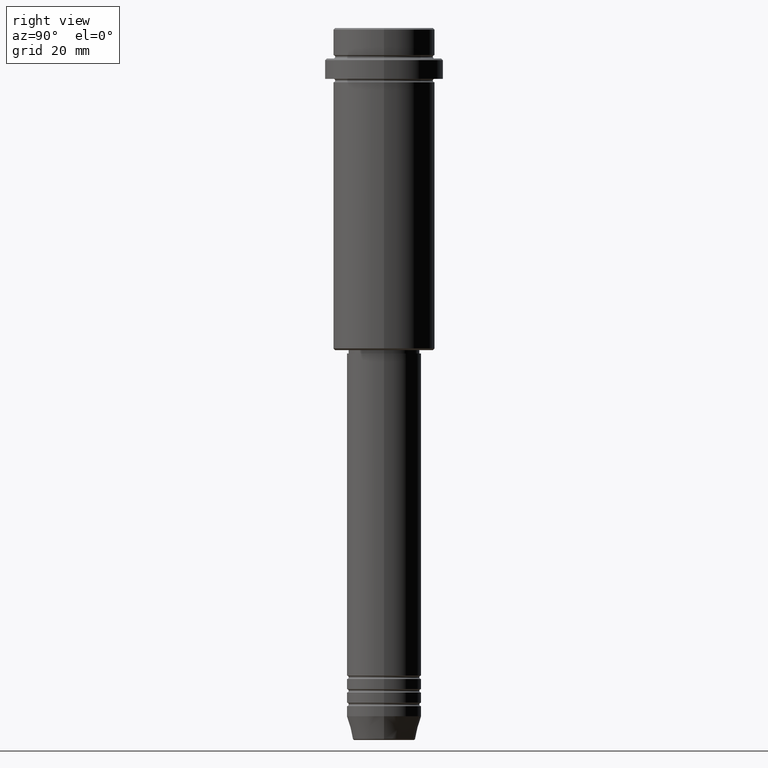
[diagram: clean part render]
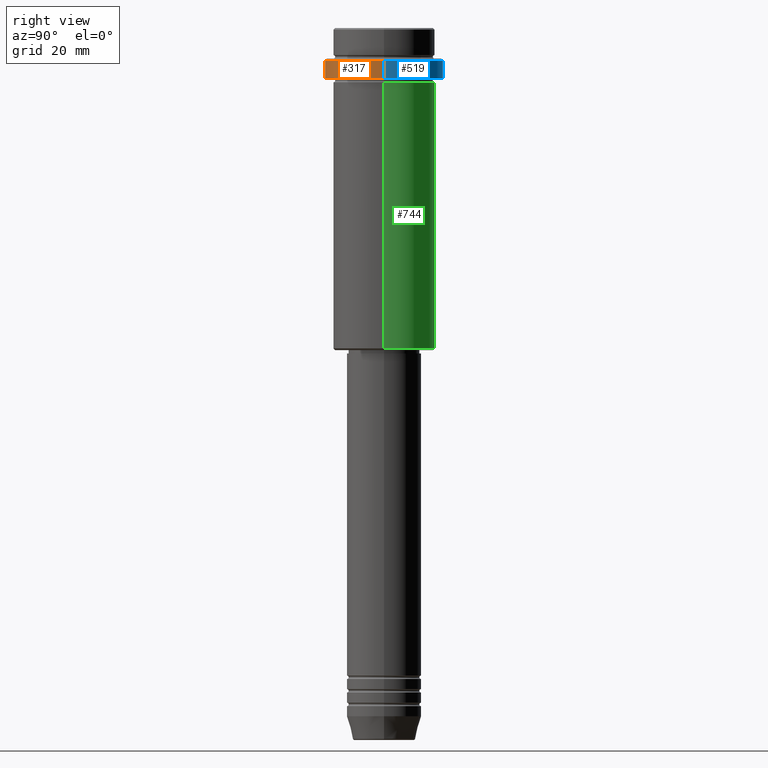
[diagram: same view with three faces highlighted in distinct colors, each labeled with its STEP entity id]
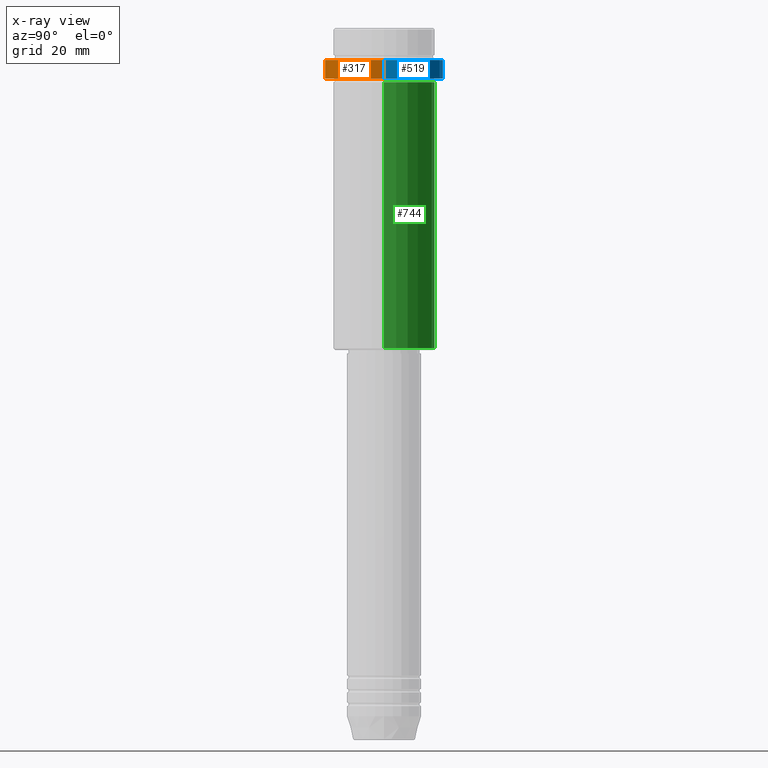
[diagram: x-ray of the same camera — body ghosted, the three highlighted faces saturated]
A machine part, right view with three faces highlighted in distinct colors.
The next image is the same camera in x-ray (body ghosted, the three faces saturated) — at least one of them is partly hidden behind the body in this view.
Their STEP definitions:

[orange] entity #317 — the highlighted cylindrical surface (partial cylindrical patch) has radius 17.5 mm, axis along (-0, -0, 1).
#38 = CARTESIAN_POINT ( 'NONE',  ( 17.50000000000000000, 0.000000000000000000, 0.000000000000000000 ) ) ;
#125 = EDGE_CURVE ( 'NONE', #884, #1259, #1309, .T. ) ;
#137 = AXIS2_PLACEMENT_3D ( 'NONE', #1012, #468, #272 ) ;
#221 = LINE ( 'NONE', #976, #544 ) ;
#226 = CYLINDRICAL_SURFACE ( 'NONE', #651, 17.50000000000000000 ) ;
#272 = DIRECTION ( 'NONE',  ( 1.000000000000000000, 0.000000000000000000, 0.000000000000000000 ) ) ;
#304 = DIRECTION ( 'NONE',  ( -0.000000000000000000, -0.000000000000000000, 1.000000000000000000 ) ) ;
#317 = ADVANCED_FACE ( 'NONE', ( #906 ), #226, .T. ) ;
#368 = CARTESIAN_POINT ( 'NONE',  ( 0.000000000000000000, 0.000000000000000000, 0.000000000000000000 ) ) ;
#389 = EDGE_CURVE ( 'NONE', #1259, #475, #1227, .T. ) ;
#442 = AXIS2_PLACEMENT_3D ( 'NONE', #1244, #304, #523 ) ;
#468 = DIRECTION ( 'NONE',  ( 0.000000000000000000, 0.000000000000000000, -1.000000000000000000 ) ) ;
#475 = VERTEX_POINT ( 'NONE', #1255 ) ;
#523 = DIRECTION ( 'NONE',  ( 1.000000000000000000, 0.000000000000000000, 0.000000000000000000 ) ) ;
#544 = VECTOR ( 'NONE', #1404, 1000.000000000000000 ) ;
#554 = DIRECTION ( 'NONE',  ( -0.000000000000000000, -0.000000000000000000, 1.000000000000000000 ) ) ;
#613 = CARTESIAN_POINT ( 'NONE',  ( -17.50000000000000000, 2.143131898507868248E-15, -9.500000000000028422 ) ) ;
#651 = AXIS2_PLACEMENT_3D ( 'NONE', #368, #554, #993 ) ;
#813 = ORIENTED_EDGE ( 'NONE', *, *, #389, .T. ) ;
#821 = CARTESIAN_POINT ( 'NONE',  ( -17.50000000000000000, 2.143131898507868248E-15, -15.00000000000000178 ) ) ;
#884 = VERTEX_POINT ( 'NONE', #821 ) ;
#895 = VECTOR ( 'NONE', #926, 1000.000000000000000 ) ;
#906 = FACE_OUTER_BOUND ( 'NONE', #937, .T. ) ;
#920 = ORIENTED_EDGE ( 'NONE', *, *, #1254, .F. ) ;
#926 = DIRECTION ( 'NONE',  ( -0.000000000000000000, -0.000000000000000000, 1.000000000000000000 ) ) ;
#937 = EDGE_LOOP ( 'NONE', ( #920, #1363, #813, #965 ) ) ;
#965 = ORIENTED_EDGE ( 'NONE', *, *, #1145, .T. ) ;
#968 = CARTESIAN_POINT ( 'NONE',  ( 17.50000000000000000, 0.000000000000000000, -15.00000000000000178 ) ) ;
#976 = CARTESIAN_POINT ( 'NONE',  ( -17.50000000000000000, 2.143131898507868248E-15, 0.000000000000000000 ) ) ;
#993 = DIRECTION ( 'NONE',  ( 1.000000000000000000, 0.000000000000000000, 0.000000000000000000 ) ) ;
#1012 = CARTESIAN_POINT ( 'NONE',  ( 0.000000000000000000, 0.000000000000000000, -9.500000000000028422 ) ) ;
#1039 = VERTEX_POINT ( 'NONE', #613 ) ;
#1106 = CIRCLE ( 'NONE', #137, 17.50000000000000000 ) ;
#1145 = EDGE_CURVE ( 'NONE', #475, #1039, #1106, .T. ) ;
#1227 = LINE ( 'NONE', #38, #895 ) ;
#1244 = CARTESIAN_POINT ( 'NONE',  ( 0.000000000000000000, 0.000000000000000000, -15.00000000000000178 ) ) ;
#1254 = EDGE_CURVE ( 'NONE', #884, #1039, #221, .T. ) ;
#1255 = CARTESIAN_POINT ( 'NONE',  ( 17.50000000000000000, 0.000000000000000000, -9.500000000000028422 ) ) ;
#1259 = VERTEX_POINT ( 'NONE', #968 ) ;
#1309 = CIRCLE ( 'NONE', #442, 17.50000000000000000 ) ;
#1363 = ORIENTED_EDGE ( 'NONE', *, *, #125, .T. ) ;
#1404 = DIRECTION ( 'NONE',  ( -0.000000000000000000, -0.000000000000000000, 1.000000000000000000 ) ) ;

[blue] entity #519 — the highlighted cylindrical surface (partial cylindrical patch) has radius 17.5 mm, axis along (-0, -0, 1).
#22 = ORIENTED_EDGE ( 'NONE', *, *, #240, .T. ) ;
#38 = CARTESIAN_POINT ( 'NONE',  ( 17.50000000000000000, 0.000000000000000000, 0.000000000000000000 ) ) ;
#180 = CYLINDRICAL_SURFACE ( 'NONE', #1048, 17.50000000000000000 ) ;
#207 = CARTESIAN_POINT ( 'NONE',  ( 0.000000000000000000, 0.000000000000000000, 0.000000000000000000 ) ) ;
#218 = EDGE_LOOP ( 'NONE', ( #507, #851, #22, #726 ) ) ;
#221 = LINE ( 'NONE', #976, #544 ) ;
#240 = EDGE_CURVE ( 'NONE', #1039, #475, #258, .T. ) ;
#258 = CIRCLE ( 'NONE', #778, 17.50000000000000000 ) ;
#389 = EDGE_CURVE ( 'NONE', #1259, #475, #1227, .T. ) ;
#452 = DIRECTION ( 'NONE',  ( -0.000000000000000000, -0.000000000000000000, 1.000000000000000000 ) ) ;
#475 = VERTEX_POINT ( 'NONE', #1255 ) ;
#507 = ORIENTED_EDGE ( 'NONE', *, *, #954, .T. ) ;
#519 = ADVANCED_FACE ( 'NONE', ( #718 ), #180, .T. ) ;
#544 = VECTOR ( 'NONE', #1404, 1000.000000000000000 ) ;
#551 = CARTESIAN_POINT ( 'NONE',  ( 0.000000000000000000, 0.000000000000000000, -9.500000000000028422 ) ) ;
#563 = CIRCLE ( 'NONE', #608, 17.50000000000000000 ) ;
#608 = AXIS2_PLACEMENT_3D ( 'NONE', #973, #1181, #1281 ) ;
#613 = CARTESIAN_POINT ( 'NONE',  ( -17.50000000000000000, 2.143131898507868248E-15, -9.500000000000028422 ) ) ;
#718 = FACE_OUTER_BOUND ( 'NONE', #218, .T. ) ;
#726 = ORIENTED_EDGE ( 'NONE', *, *, #389, .F. ) ;
#778 = AXIS2_PLACEMENT_3D ( 'NONE', #551, #1172, #1075 ) ;
#821 = CARTESIAN_POINT ( 'NONE',  ( -17.50000000000000000, 2.143131898507868248E-15, -15.00000000000000178 ) ) ;
#851 = ORIENTED_EDGE ( 'NONE', *, *, #1254, .T. ) ;
#879 = DIRECTION ( 'NONE',  ( 1.000000000000000000, 0.000000000000000000, 0.000000000000000000 ) ) ;
#884 = VERTEX_POINT ( 'NONE', #821 ) ;
#895 = VECTOR ( 'NONE', #926, 1000.000000000000000 ) ;
#926 = DIRECTION ( 'NONE',  ( -0.000000000000000000, -0.000000000000000000, 1.000000000000000000 ) ) ;
#954 = EDGE_CURVE ( 'NONE', #1259, #884, #563, .T. ) ;
#968 = CARTESIAN_POINT ( 'NONE',  ( 17.50000000000000000, 0.000000000000000000, -15.00000000000000178 ) ) ;
#973 = CARTESIAN_POINT ( 'NONE',  ( 0.000000000000000000, 0.000000000000000000, -15.00000000000000178 ) ) ;
#976 = CARTESIAN_POINT ( 'NONE',  ( -17.50000000000000000, 2.143131898507868248E-15, 0.000000000000000000 ) ) ;
#1039 = VERTEX_POINT ( 'NONE', #613 ) ;
#1048 = AXIS2_PLACEMENT_3D ( 'NONE', #207, #452, #879 ) ;
#1075 = DIRECTION ( 'NONE',  ( 1.000000000000000000, 0.000000000000000000, 0.000000000000000000 ) ) ;
#1172 = DIRECTION ( 'NONE',  ( 0.000000000000000000, 0.000000000000000000, -1.000000000000000000 ) ) ;
#1181 = DIRECTION ( 'NONE',  ( -0.000000000000000000, -0.000000000000000000, 1.000000000000000000 ) ) ;
#1227 = LINE ( 'NONE', #38, #895 ) ;
#1254 = EDGE_CURVE ( 'NONE', #884, #1039, #221, .T. ) ;
#1255 = CARTESIAN_POINT ( 'NONE',  ( 17.50000000000000000, 0.000000000000000000, -9.500000000000028422 ) ) ;
#1259 = VERTEX_POINT ( 'NONE', #968 ) ;
#1281 = DIRECTION ( 'NONE',  ( 1.000000000000000000, 0.000000000000000000, 0.000000000000000000 ) ) ;
#1404 = DIRECTION ( 'NONE',  ( -0.000000000000000000, -0.000000000000000000, 1.000000000000000000 ) ) ;

[green] entity #744 — the highlighted cylindrical surface (partial cylindrical patch) has radius 15 mm, axis along (-0, -0, 1).
#24 = EDGE_LOOP ( 'NONE', ( #756, #115, #1033, #637 ) ) ;
#115 = ORIENTED_EDGE ( 'NONE', *, *, #1185, .T. ) ;
#146 = CARTESIAN_POINT ( 'NONE',  ( 0.000000000000000000, 0.000000000000000000, 0.000000000000000000 ) ) ;
#174 = VERTEX_POINT ( 'NONE', #955 ) ;
#261 = FACE_OUTER_BOUND ( 'NONE', #24, .T. ) ;
#262 = DIRECTION ( 'NONE',  ( -1.000000000000000000, 0.000000000000000000, 0.000000000000000000 ) ) ;
#285 = EDGE_CURVE ( 'NONE', #174, #798, #1386, .T. ) ;
#287 = AXIS2_PLACEMENT_3D ( 'NONE', #146, #408, #1042 ) ;
#316 = DIRECTION ( 'NONE',  ( -0.000000000000000000, -0.000000000000000000, 1.000000000000000000 ) ) ;
#374 = DIRECTION ( 'NONE',  ( -0.000000000000000000, -0.000000000000000000, 1.000000000000000000 ) ) ;
#408 = DIRECTION ( 'NONE',  ( -0.000000000000000000, -0.000000000000000000, 1.000000000000000000 ) ) ;
#459 = VERTEX_POINT ( 'NONE', #738 ) ;
#472 = CARTESIAN_POINT ( 'NONE',  ( 0.000000000000000000, 0.000000000000000000, -94.49999999999998579 ) ) ;
#537 = CARTESIAN_POINT ( 'NONE',  ( -15.00000000000000000, 1.836970198721029589E-15, 0.000000000000000000 ) ) ;
#560 = CARTESIAN_POINT ( 'NONE',  ( 15.00000000000000178, 0.000000000000000000, -16.00000000000000000 ) ) ;
#596 = CARTESIAN_POINT ( 'NONE',  ( -15.00000000000000000, 1.836970198721029589E-15, -94.49999999999998579 ) ) ;
#637 = ORIENTED_EDGE ( 'NONE', *, *, #864, .F. ) ;
#671 = VECTOR ( 'NONE', #374, 1000.000000000000000 ) ;
#738 = CARTESIAN_POINT ( 'NONE',  ( -15.00000000000000355, 1.836970198721029983E-15, -16.00000000000000000 ) ) ;
#744 = ADVANCED_FACE ( 'NONE', ( #261 ), #1113, .T. ) ;
#756 = ORIENTED_EDGE ( 'NONE', *, *, #285, .T. ) ;
#798 = VERTEX_POINT ( 'NONE', #596 ) ;
#808 = CIRCLE ( 'NONE', #1314, 15.00000000000000178 ) ;
#864 = EDGE_CURVE ( 'NONE', #174, #1007, #939, .T. ) ;
#871 = DIRECTION ( 'NONE',  ( -0.000000000000000000, -0.000000000000000000, 1.000000000000000000 ) ) ;
#875 = CARTESIAN_POINT ( 'NONE',  ( 0.000000000000000000, 0.000000000000000000, -16.00000000000000000 ) ) ;
#887 = DIRECTION ( 'NONE',  ( -0.000000000000000000, -0.000000000000000000, 1.000000000000000000 ) ) ;
#939 = LINE ( 'NONE', #1371, #671 ) ;
#955 = CARTESIAN_POINT ( 'NONE',  ( 15.00000000000000000, 0.000000000000000000, -94.49999999999998579 ) ) ;
#977 = EDGE_CURVE ( 'NONE', #1007, #459, #808, .T. ) ;
#1007 = VERTEX_POINT ( 'NONE', #560 ) ;
#1033 = ORIENTED_EDGE ( 'NONE', *, *, #977, .F. ) ;
#1042 = DIRECTION ( 'NONE',  ( 1.000000000000000000, 0.000000000000000000, 0.000000000000000000 ) ) ;
#1113 = CYLINDRICAL_SURFACE ( 'NONE', #287, 15.00000000000000000 ) ;
#1185 = EDGE_CURVE ( 'NONE', #798, #459, #1186, .T. ) ;
#1186 = LINE ( 'NONE', #537, #1391 ) ;
#1238 = AXIS2_PLACEMENT_3D ( 'NONE', #472, #887, #262 ) ;
#1314 = AXIS2_PLACEMENT_3D ( 'NONE', #875, #871, #1399 ) ;
#1371 = CARTESIAN_POINT ( 'NONE',  ( 15.00000000000000000, 0.000000000000000000, 0.000000000000000000 ) ) ;
#1386 = CIRCLE ( 'NONE', #1238, 15.00000000000000000 ) ;
#1391 = VECTOR ( 'NONE', #316, 1000.000000000000000 ) ;
#1399 = DIRECTION ( 'NONE',  ( 1.000000000000000000, 0.000000000000000000, 0.000000000000000000 ) ) ;